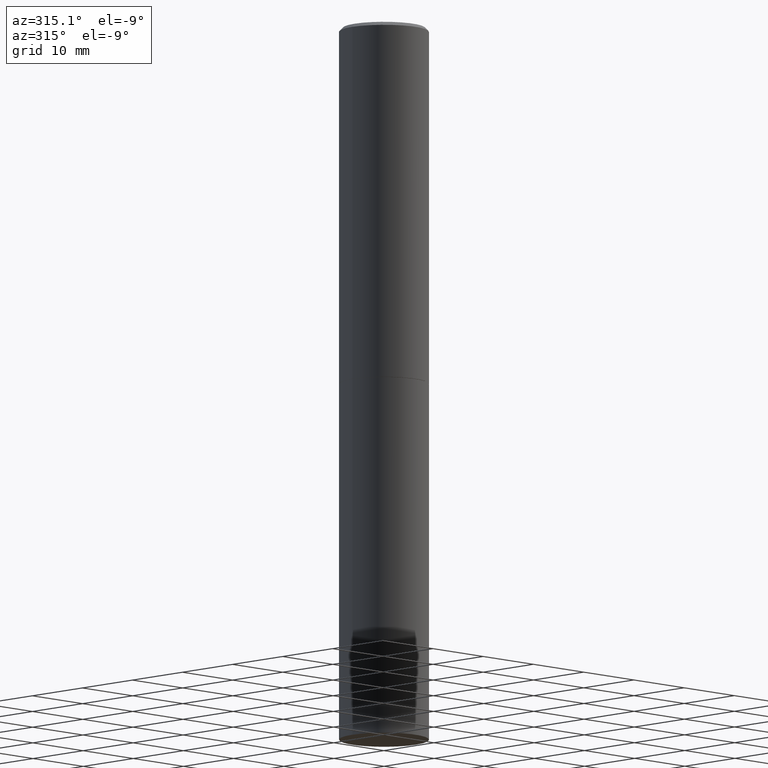
[diagram: clean part render]
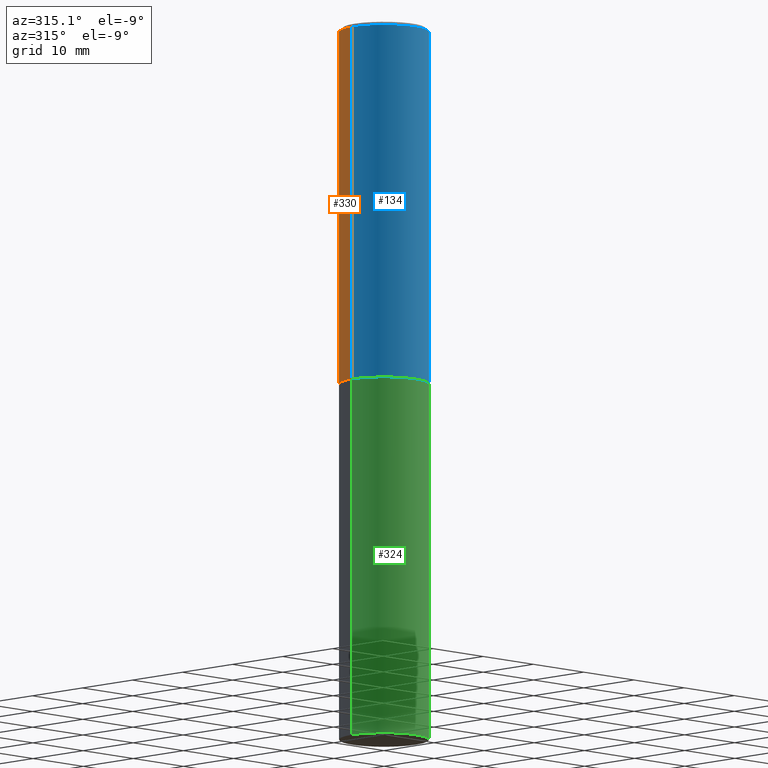
[diagram: same view with three faces highlighted in distinct colors, each labeled with its STEP entity id]
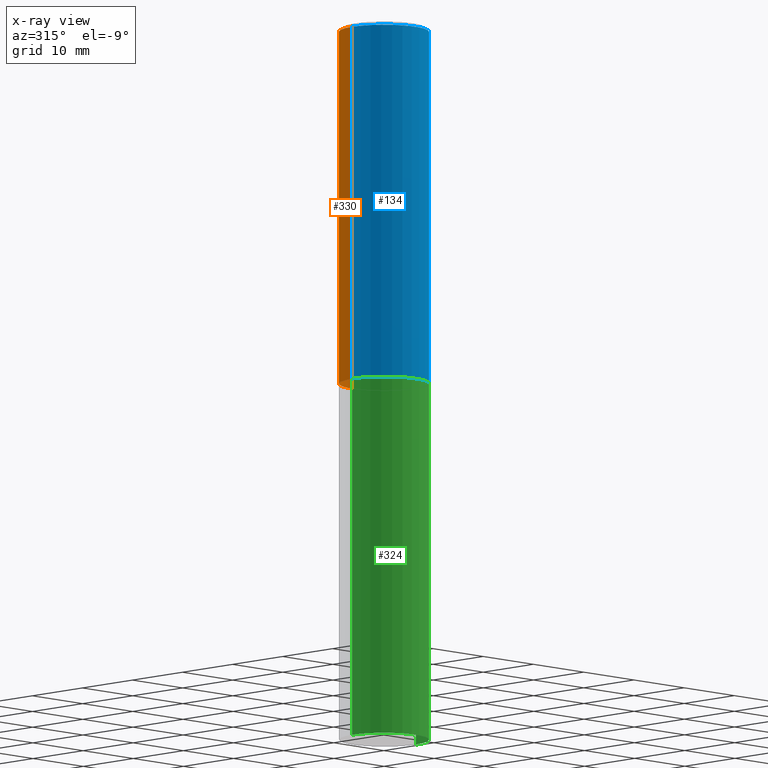
[diagram: x-ray of the same camera — body ghosted, the three highlighted faces saturated]
A machine part, auxiliary view with three faces highlighted in distinct colors.
The next image is the same camera in x-ray (body ghosted, the three faces saturated) — at least one of them is partly hidden behind the body in this view.
Their STEP definitions:

[orange] entity #330 — the highlighted cylindrical surface (partial cylindrical patch) has radius 6.35 mm, axis along (-0, 0, 1).
#11 = ORIENTED_EDGE ( 'NONE', *, *, #128, .F. ) ;
#14 = VECTOR ( 'NONE', #338, 39.37007874015748143 ) ;
#30 = CARTESIAN_POINT ( 'NONE',  ( 0.2499999999999998057, -1.784954126219744611E-15, -0.02000000000000005593 ) ) ;
#34 = AXIS2_PLACEMENT_3D ( 'NONE', #322, #319, #59 ) ;
#55 = CYLINDRICAL_SURFACE ( 'NONE', #92, 0.2499999999999998890 ) ;
#59 = DIRECTION ( 'NONE',  ( 1.000000000000000000, -6.982962677686266711E-15, 0.000000000000000000 ) ) ;
#65 = EDGE_CURVE ( 'NONE', #189, #187, #339, .T. ) ;
#72 = ORIENTED_EDGE ( 'NONE', *, *, #113, .T. ) ;
#92 = AXIS2_PLACEMENT_3D ( 'NONE', #172, #234, #293 ) ;
#95 = CIRCLE ( 'NONE', #173, 0.2500000000000000000 ) ;
#99 = VERTEX_POINT ( 'NONE', #177 ) ;
#112 = DIRECTION ( 'NONE',  ( -2.445468806185136597E-29, 3.491481338843145583E-15, 1.000000000000000000 ) ) ;
#113 = EDGE_CURVE ( 'NONE', #189, #185, #95, .T. ) ;
#126 = EDGE_LOOP ( 'NONE', ( #72, #186, #11, #214 ) ) ;
#128 = EDGE_CURVE ( 'NONE', #187, #99, #318, .T. ) ;
#158 = EDGE_CURVE ( 'NONE', #185, #99, #249, .T. ) ;
#172 = CARTESIAN_POINT ( 'NONE',  ( 0.000000000000000000, 0.000000000000000000, 0.000000000000000000 ) ) ;
#173 = AXIS2_PLACEMENT_3D ( 'NONE', #233, #112, #180 ) ;
#177 = CARTESIAN_POINT ( 'NONE',  ( -0.2499999999999998057, 1.675911042644702196E-15, -0.02000000000000005593 ) ) ;
#180 = DIRECTION ( 'NONE',  ( 1.000000000000000000, -6.982962677686266711E-15, 0.000000000000000000 ) ) ;
#185 = VERTEX_POINT ( 'NONE', #345 ) ;
#186 = ORIENTED_EDGE ( 'NONE', *, *, #158, .T. ) ;
#187 = VERTEX_POINT ( 'NONE', #30 ) ;
#189 = VERTEX_POINT ( 'NONE', #198 ) ;
#198 = CARTESIAN_POINT ( 'NONE',  ( 0.2500000000000000000, -8.725211865769014047E-15, -1.998999999999999888 ) ) ;
#199 = CARTESIAN_POINT ( 'NONE',  ( 0.2499999999999998890, -1.745740669421565889E-15, 1.219044193948983388E-29 ) ) ;
#200 = FACE_OUTER_BOUND ( 'NONE', #126, .T. ) ;
#214 = ORIENTED_EDGE ( 'NONE', *, *, #65, .F. ) ;
#233 = CARTESIAN_POINT ( 'NONE',  ( 4.888492143564087591E-29, -6.979471196347447369E-15, -1.998999999999999888 ) ) ;
#234 = DIRECTION ( 'NONE',  ( -2.445468806185136597E-29, 3.491481338843145583E-15, 1.000000000000000000 ) ) ;
#249 = LINE ( 'NONE', #281, #14 ) ;
#281 = CARTESIAN_POINT ( 'NONE',  ( -0.2499999999999998890, 1.776356839400249676E-15, -1.229733772563726025E-29 ) ) ;
#293 = DIRECTION ( 'NONE',  ( 1.000000000000000000, -6.982962677686266711E-15, 4.876176775795935793E-29 ) ) ;
#315 = DIRECTION ( 'NONE',  ( -2.445468806185136877E-29, 3.491481338843145188E-15, 1.000000000000000000 ) ) ;
#318 = CIRCLE ( 'NONE', #34, 0.2499999999999998057 ) ;
#319 = DIRECTION ( 'NONE',  ( -2.445468806185136597E-29, 3.491481338843145583E-15, 1.000000000000000000 ) ) ;
#322 = CARTESIAN_POINT ( 'NONE',  ( 4.890937612370287172E-31, -6.982962677686310098E-17, -0.02000000000000005593 ) ) ;
#330 = ADVANCED_FACE ( 'NONE', ( #200 ), #55, .T. ) ;
#338 = DIRECTION ( 'NONE',  ( -2.445468806185136877E-29, 3.491481338843145188E-15, 1.000000000000000000 ) ) ;
#339 = LINE ( 'NONE', #199, #365 ) ;
#345 = CARTESIAN_POINT ( 'NONE',  ( -0.2500000000000000000, -1.748293572161903489E-15, -1.998999999999999888 ) ) ;
#365 = VECTOR ( 'NONE', #315, 39.37007874015748143 ) ;

[blue] entity #134 — the highlighted cylindrical surface (partial cylindrical patch) has radius 6.35 mm, axis along (-0, 0, 1).
#4 = DIRECTION ( 'NONE',  ( 1.000000000000000000, -6.982962677686266711E-15, 0.000000000000000000 ) ) ;
#7 = CARTESIAN_POINT ( 'NONE',  ( 4.888492143564087591E-29, -6.979471196347447369E-15, -1.998999999999999888 ) ) ;
#14 = VECTOR ( 'NONE', #338, 39.37007874015748143 ) ;
#28 = DIRECTION ( 'NONE',  ( -2.445468806185136597E-29, 3.491481338843145583E-15, 1.000000000000000000 ) ) ;
#30 = CARTESIAN_POINT ( 'NONE',  ( 0.2499999999999998057, -1.784954126219744611E-15, -0.02000000000000005593 ) ) ;
#33 = DIRECTION ( 'NONE',  ( -2.445468806185136597E-29, 3.491481338843145583E-15, 1.000000000000000000 ) ) ;
#65 = EDGE_CURVE ( 'NONE', #189, #187, #339, .T. ) ;
#93 = ORIENTED_EDGE ( 'NONE', *, *, #65, .T. ) ;
#99 = VERTEX_POINT ( 'NONE', #177 ) ;
#111 = CARTESIAN_POINT ( 'NONE',  ( 4.890937612370287172E-31, -6.982962677686310098E-17, -0.02000000000000005593 ) ) ;
#115 = DIRECTION ( 'NONE',  ( 1.000000000000000000, -6.982962677686266711E-15, 4.876176775795935793E-29 ) ) ;
#134 = ADVANCED_FACE ( 'NONE', ( #146 ), #260, .T. ) ;
#146 = FACE_OUTER_BOUND ( 'NONE', #237, .T. ) ;
#158 = EDGE_CURVE ( 'NONE', #185, #99, #249, .T. ) ;
#163 = EDGE_CURVE ( 'NONE', #99, #187, #304, .T. ) ;
#168 = DIRECTION ( 'NONE',  ( -2.445468806185136597E-29, 3.491481338843145583E-15, 1.000000000000000000 ) ) ;
#177 = CARTESIAN_POINT ( 'NONE',  ( -0.2499999999999998057, 1.675911042644702196E-15, -0.02000000000000005593 ) ) ;
#178 = EDGE_CURVE ( 'NONE', #185, #189, #217, .T. ) ;
#185 = VERTEX_POINT ( 'NONE', #345 ) ;
#187 = VERTEX_POINT ( 'NONE', #30 ) ;
#188 = AXIS2_PLACEMENT_3D ( 'NONE', #7, #168, #247 ) ;
#189 = VERTEX_POINT ( 'NONE', #198 ) ;
#198 = CARTESIAN_POINT ( 'NONE',  ( 0.2500000000000000000, -8.725211865769014047E-15, -1.998999999999999888 ) ) ;
#199 = CARTESIAN_POINT ( 'NONE',  ( 0.2499999999999998890, -1.745740669421565889E-15, 1.219044193948983388E-29 ) ) ;
#217 = CIRCLE ( 'NONE', #188, 0.2500000000000000000 ) ;
#237 = EDGE_LOOP ( 'NONE', ( #300, #243, #93, #244 ) ) ;
#243 = ORIENTED_EDGE ( 'NONE', *, *, #178, .T. ) ;
#244 = ORIENTED_EDGE ( 'NONE', *, *, #163, .F. ) ;
#247 = DIRECTION ( 'NONE',  ( 1.000000000000000000, -6.982962677686266711E-15, 0.000000000000000000 ) ) ;
#249 = LINE ( 'NONE', #281, #14 ) ;
#254 = AXIS2_PLACEMENT_3D ( 'NONE', #323, #33, #115 ) ;
#260 = CYLINDRICAL_SURFACE ( 'NONE', #254, 0.2499999999999998890 ) ;
#281 = CARTESIAN_POINT ( 'NONE',  ( -0.2499999999999998890, 1.776356839400249676E-15, -1.229733772563726025E-29 ) ) ;
#300 = ORIENTED_EDGE ( 'NONE', *, *, #158, .F. ) ;
#304 = CIRCLE ( 'NONE', #352, 0.2499999999999998057 ) ;
#315 = DIRECTION ( 'NONE',  ( -2.445468806185136877E-29, 3.491481338843145188E-15, 1.000000000000000000 ) ) ;
#323 = CARTESIAN_POINT ( 'NONE',  ( 0.000000000000000000, 0.000000000000000000, 0.000000000000000000 ) ) ;
#338 = DIRECTION ( 'NONE',  ( -2.445468806185136877E-29, 3.491481338843145188E-15, 1.000000000000000000 ) ) ;
#339 = LINE ( 'NONE', #199, #365 ) ;
#345 = CARTESIAN_POINT ( 'NONE',  ( -0.2500000000000000000, -1.748293572161903489E-15, -1.998999999999999888 ) ) ;
#352 = AXIS2_PLACEMENT_3D ( 'NONE', #111, #28, #4 ) ;
#365 = VECTOR ( 'NONE', #315, 39.37007874015748143 ) ;

[green] entity #324 — the highlighted cylindrical surface (partial cylindrical patch) has radius 6.35 mm, axis along (-0, 0, 1).
#6 = LINE ( 'NONE', #164, #232 ) ;
#21 = ORIENTED_EDGE ( 'NONE', *, *, #364, .T. ) ;
#25 = DIRECTION ( 'NONE',  ( -2.445468806185136597E-29, 3.491481338843145583E-15, 1.000000000000000000 ) ) ;
#27 = CARTESIAN_POINT ( 'NONE',  ( 9.781875224740546387E-29, -1.396592535537258233E-14, -4.000000000000000000 ) ) ;
#38 = CARTESIAN_POINT ( 'NONE',  ( 0.2500000000000000000, -1.745740669421566678E-15, 1.219044193948983948E-29 ) ) ;
#43 = AXIS2_PLACEMENT_3D ( 'NONE', #27, #53, #342 ) ;
#47 = CARTESIAN_POINT ( 'NONE',  ( 0.2500000000000000000, -1.571166602479415059E-14, -4.000000000000000000 ) ) ;
#53 = DIRECTION ( 'NONE',  ( -2.445468806185136597E-29, 3.491481338843145583E-15, 1.000000000000000000 ) ) ;
#69 = EDGE_CURVE ( 'NONE', #129, #303, #120, .T. ) ;
#83 = DIRECTION ( 'NONE',  ( -2.445468806185136597E-29, 3.491481338843145583E-15, 1.000000000000000000 ) ) ;
#90 = CARTESIAN_POINT ( 'NONE',  ( -0.2500000000000000000, -8.698087177129185889E-15, -4.000000000000000000 ) ) ;
#100 = ORIENTED_EDGE ( 'NONE', *, *, #258, .F. ) ;
#109 = CARTESIAN_POINT ( 'NONE',  ( 0.2500000000000000000, -8.728703347107857054E-15, -2.000000000000000000 ) ) ;
#114 = DIRECTION ( 'NONE',  ( 1.000000000000000000, -6.982962677686266711E-15, 0.000000000000000000 ) ) ;
#120 = CIRCLE ( 'NONE', #43, 0.2500000000000000000 ) ;
#129 = VERTEX_POINT ( 'NONE', #90 ) ;
#130 = ORIENTED_EDGE ( 'NONE', *, *, #69, .T. ) ;
#138 = FACE_OUTER_BOUND ( 'NONE', #273, .T. ) ;
#145 = CYLINDRICAL_SURFACE ( 'NONE', #361, 0.2500000000000000000 ) ;
#164 = CARTESIAN_POINT ( 'NONE',  ( -0.2500000000000000000, 1.776356839400250465E-15, -1.229733772563726445E-29 ) ) ;
#174 = AXIS2_PLACEMENT_3D ( 'NONE', #310, #83, #114 ) ;
#176 = DIRECTION ( 'NONE',  ( -2.445468806185136877E-29, 3.491481338843145188E-15, 1.000000000000000000 ) ) ;
#182 = ORIENTED_EDGE ( 'NONE', *, *, #250, .F. ) ;
#209 = LINE ( 'NONE', #38, #320 ) ;
#232 = VECTOR ( 'NONE', #176, 39.37007874015748143 ) ;
#250 = EDGE_CURVE ( 'NONE', #268, #270, #256, .T. ) ;
#256 = CIRCLE ( 'NONE', #174, 0.2500000000000000000 ) ;
#258 = EDGE_CURVE ( 'NONE', #129, #268, #6, .T. ) ;
#267 = DIRECTION ( 'NONE',  ( -2.445468806185136877E-29, 3.491481338843145188E-15, 1.000000000000000000 ) ) ;
#268 = VERTEX_POINT ( 'NONE', #316 ) ;
#270 = VERTEX_POINT ( 'NONE', #109 ) ;
#273 = EDGE_LOOP ( 'NONE', ( #100, #130, #21, #182 ) ) ;
#275 = CARTESIAN_POINT ( 'NONE',  ( 0.000000000000000000, 0.000000000000000000, 0.000000000000000000 ) ) ;
#303 = VERTEX_POINT ( 'NONE', #47 ) ;
#310 = CARTESIAN_POINT ( 'NONE',  ( 4.890937612370273194E-29, -6.982962677686291165E-15, -2.000000000000000000 ) ) ;
#316 = CARTESIAN_POINT ( 'NONE',  ( -0.2500000000000000000, -8.698087177129185889E-15, -2.000000000000000000 ) ) ;
#320 = VECTOR ( 'NONE', #267, 39.37007874015748143 ) ;
#324 = ADVANCED_FACE ( 'NONE', ( #138 ), #145, .T. ) ;
#341 = DIRECTION ( 'NONE',  ( 1.000000000000000000, -6.982962677686266711E-15, 4.876176775795935793E-29 ) ) ;
#342 = DIRECTION ( 'NONE',  ( 1.000000000000000000, -6.982962677686270655E-15, 0.000000000000000000 ) ) ;
#361 = AXIS2_PLACEMENT_3D ( 'NONE', #275, #25, #341 ) ;
#364 = EDGE_CURVE ( 'NONE', #303, #270, #209, .T. ) ;